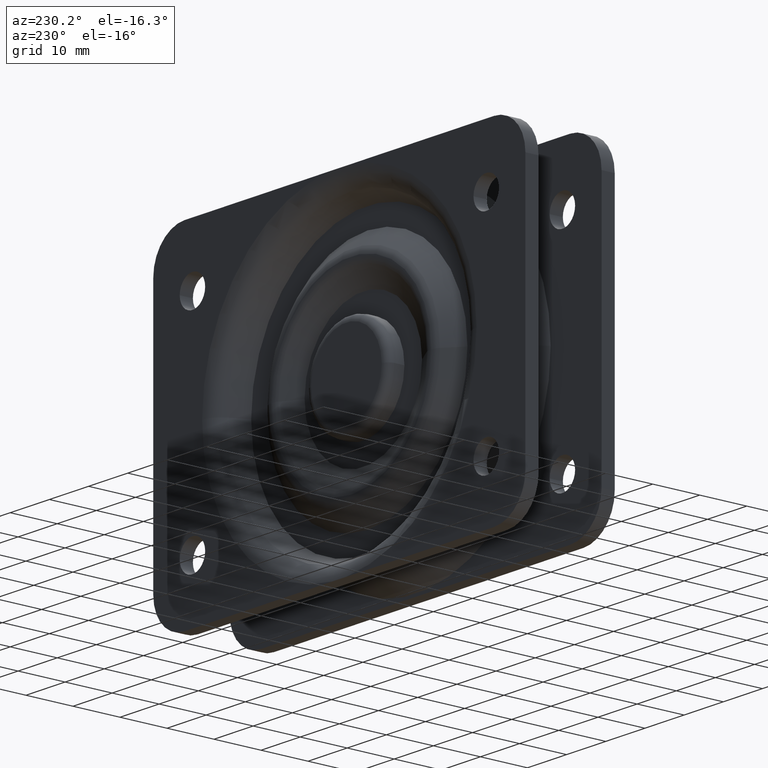
[diagram: clean part render]
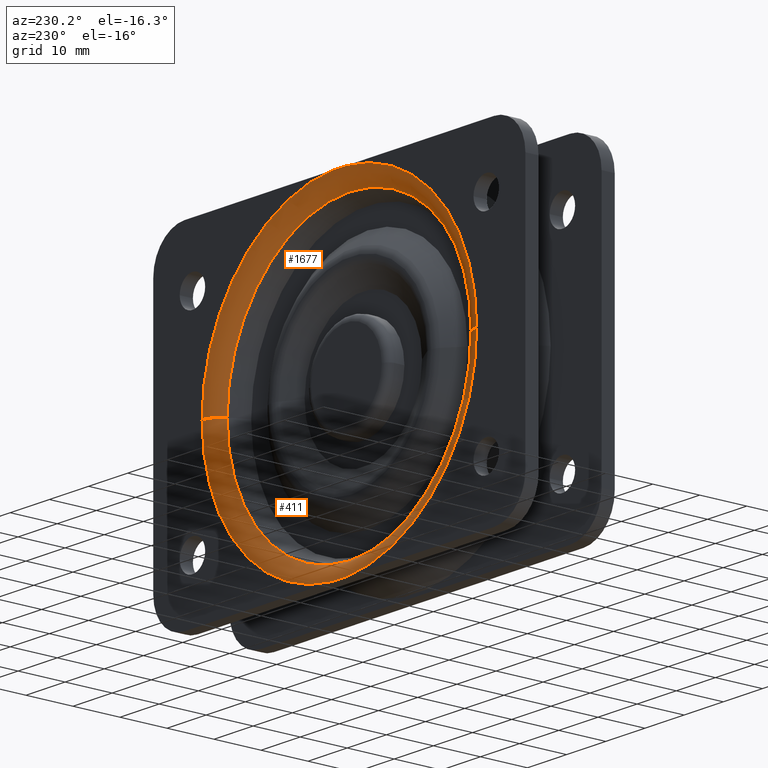
[diagram: same view with one multi-face feature highlighted, each face labeled with its STEP entity id]
A machine part, auxiliary view. The highlighted faces form ONE feature: a constant-radius fillet chain: 2 tangent blend faces with common blend radius 4 mm. The faces share edges in the B-rep.
Their STEP definitions:
[1] entity #411 (Torus):
#39 = CARTESIAN_POINT ( 'NONE',  ( 0.0000000000000000000, -2.309526953037200681, 0.0000000000000000000 ) ) ;
#50 = ORIENTED_EDGE ( 'NONE', *, *, #3909, .F. ) ;
#168 = AXIS2_PLACEMENT_3D ( 'NONE', #249, #897, #1289 ) ;
#249 = CARTESIAN_POINT ( 'NONE',  ( 0.0000000000000000000, 0.0000000000000000000, 0.0000000000000000000 ) ) ;
#292 = DIRECTION ( 'NONE',  ( 0.0000000000000000000, 1.000000000000000000, 0.0000000000000000000 ) ) ;
#311 = B_SPLINE_CURVE_WITH_KNOTS ( 'NONE', 3,
 ( #2778, #1271, #2363, #1683, #3511, #2761, #3542 ),
 .UNSPECIFIED., .F., .F.,
 ( 4, 3, 4 ),
 ( 2.818925683848820622E-18, 0.001839022612733277797, 0.003678045225466555160 ),
 .UNSPECIFIED. ) ;
#315 = CARTESIAN_POINT ( 'NONE',  ( -35.04828104322998428, -4.000000000000000000, 0.0000000000000000000 ) ) ;
#317 = CARTESIAN_POINT ( 'NONE',  ( 35.04828104322998428, -4.000000000000000000, 4.292176519520845193E-15 ) ) ;
#411 = ADVANCED_FACE ( 'NONE', ( #2570 ), #3077, .T. ) ;
#534 = AXIS2_PLACEMENT_3D ( 'NONE', #39, #822, #3450 ) ;
#715 = CARTESIAN_POINT ( 'NONE',  ( 0.0000000000000000000, -4.000000000000000000, 0.0000000000000000000 ) ) ;
#749 = EDGE_CURVE ( 'NONE', #4804, #2352, #4773, .T. ) ;
#782 = AXIS2_PLACEMENT_3D ( 'NONE', #3106, #4215, #1232 ) ;
#822 = DIRECTION ( 'NONE',  ( 0.0000000000000000000, 1.000000000000000000, 0.0000000000000000000 ) ) ;
#897 = DIRECTION ( 'NONE',  ( -0.0000000000000000000, -1.000000000000000000, -0.0000000000000000000 ) ) ;
#994 = ORIENTED_EDGE ( 'NONE', *, *, #2971, .F. ) ;
#1122 = CARTESIAN_POINT ( 'NONE',  ( 1.839022589647689054, 0.0000000000000000000, -34.99999999999999289 ) ) ;
#1128 = DIRECTION ( 'NONE',  ( -1.224646799147353207E-16, 0.0000000000000000000, 1.000000000000000000 ) ) ;
#1163 = CARTESIAN_POINT ( 'NONE',  ( 31.42304989508337698, -2.309526953037200681, 3.848213747346142920E-15 ) ) ;
#1167 = ORIENTED_EDGE ( 'NONE', *, *, #2123, .F. ) ;
#1232 = DIRECTION ( 'NONE',  ( -1.000000000000000000, 0.0000000000000000000, 0.0000000000000000000 ) ) ;
#1271 = CARTESIAN_POINT ( 'NONE',  ( -1.226015052069905353, 3.323120519959017053E-17, -34.99999999999999289 ) ) ;
#1289 = DIRECTION ( 'NONE',  ( -1.000000000000000000, 0.0000000000000000000, 0.0000000000000000000 ) ) ;
#1299 = AXIS2_PLACEMENT_3D ( 'NONE', #315, #3294, #4108 ) ;
#1400 = AXIS2_PLACEMENT_3D ( 'NONE', #715, #292, #3726 ) ;
#1683 = CARTESIAN_POINT ( 'NONE',  ( 1.235990476633475370E-14, -0.0002913930056574784259, -34.99999999999999289 ) ) ;
#1830 = CIRCLE ( 'NONE', #534, 31.42304989508338409 ) ;
#2123 = EDGE_CURVE ( 'NONE', #3506, #3513, #3614, .T. ) ;
#2352 = VERTEX_POINT ( 'NONE', #3537 ) ;
#2363 = CARTESIAN_POINT ( 'NONE',  ( -0.6130075375777468416, -0.0002913930056574784259, -34.99999999999999289 ) ) ;
#2570 = FACE_OUTER_BOUND ( 'NONE', #3920, .T. ) ;
#2665 = CARTESIAN_POINT ( 'NONE',  ( 35.04828104322998428, 4.336808689942017736E-16, 4.292176519520845193E-15 ) ) ;
#2755 = VERTEX_POINT ( 'NONE', #1122 ) ;
#2761 = CARTESIAN_POINT ( 'NONE',  ( 1.226015052069930000, 4.728794064036332378E-16, -34.99999999999999289 ) ) ;
#2778 = CARTESIAN_POINT ( 'NONE',  ( -1.839022589647667072, 0.0000000000000000000, -34.99999999999999289 ) ) ;
#2813 = VERTEX_POINT ( 'NONE', #4802 ) ;
#2946 = ORIENTED_EDGE ( 'NONE', *, *, #3738, .T. ) ;
#2948 = DIRECTION ( 'NONE',  ( 1.000000000000000000, 0.0000000000000000000, 1.224646799147353454E-16 ) ) ;
#2971 = EDGE_CURVE ( 'NONE', #2755, #3506, #4858, .T. ) ;
#3058 = CIRCLE ( 'NONE', #1299, 3.999999999999996447 ) ;
#3077 = TOROIDAL_SURFACE ( 'NONE', #1400, 35.04828104322997717, 4.000000000000000000 ) ;
#3106 = CARTESIAN_POINT ( 'NONE',  ( 0.0000000000000000000, 0.0000000000000000000, 0.0000000000000000000 ) ) ;
#3291 = AXIS2_PLACEMENT_3D ( 'NONE', #317, #1128, #2948 ) ;
#3294 = DIRECTION ( 'NONE',  ( 0.0000000000000000000, 0.0000000000000000000, -1.000000000000000000 ) ) ;
#3333 = ORIENTED_EDGE ( 'NONE', *, *, #749, .F. ) ;
#3397 = ORIENTED_EDGE ( 'NONE', *, *, #4053, .F. ) ;
#3450 = DIRECTION ( 'NONE',  ( -1.000000000000000000, 0.0000000000000000000, 0.0000000000000000000 ) ) ;
#3506 = VERTEX_POINT ( 'NONE', #2665 ) ;
#3511 = CARTESIAN_POINT ( 'NONE',  ( 0.6130075375777714886, -0.0002913930056574784259, -34.99999999999999289 ) ) ;
#3513 = VERTEX_POINT ( 'NONE', #1163 ) ;
#3537 = CARTESIAN_POINT ( 'NONE',  ( -1.839022589647667072, 0.0000000000000000000, -34.99999999999999289 ) ) ;
#3542 = CARTESIAN_POINT ( 'NONE',  ( 1.839022589647689054, 0.0000000000000000000, -34.99999999999999289 ) ) ;
#3614 = CIRCLE ( 'NONE', #3291, 3.999999999999996447 ) ;
#3726 = DIRECTION ( 'NONE',  ( -1.000000000000000000, 0.0000000000000000000, 0.0000000000000000000 ) ) ;
#3738 = EDGE_CURVE ( 'NONE', #4804, #2813, #3058, .T. ) ;
#3909 = EDGE_CURVE ( 'NONE', #3513, #2813, #1830, .T. ) ;
#3920 = EDGE_LOOP ( 'NONE', ( #1167, #994, #3397, #3333, #2946, #50 ) ) ;
#4053 = EDGE_CURVE ( 'NONE', #2352, #2755, #311, .T. ) ;
#4108 = DIRECTION ( 'NONE',  ( -1.000000000000000000, 0.0000000000000000000, 0.0000000000000000000 ) ) ;
#4215 = DIRECTION ( 'NONE',  ( -0.0000000000000000000, -1.000000000000000000, -0.0000000000000000000 ) ) ;
#4537 = CARTESIAN_POINT ( 'NONE',  ( -35.04828104322998428, 4.336808689942017736E-16, 0.0000000000000000000 ) ) ;
#4773 = CIRCLE ( 'NONE', #168, 35.04828104322998428 ) ;
#4802 = CARTESIAN_POINT ( 'NONE',  ( -31.42304989508337698, -2.309526953037200681, 0.0000000000000000000 ) ) ;
#4804 = VERTEX_POINT ( 'NONE', #4537 ) ;
#4858 = CIRCLE ( 'NONE', #782, 35.04828104322998428 ) ;
[2] entity #1677 (Torus):
#43 = CARTESIAN_POINT ( 'NONE',  ( 0.6130075375777714886, -0.0002913930056574784259, 34.99999999999999289 ) ) ;
#112 = AXIS2_PLACEMENT_3D ( 'NONE', #4442, #4116, #335 ) ;
#193 = CARTESIAN_POINT ( 'NONE',  ( 1.839022589647687944, 0.0000000000000000000, 34.99999999999999289 ) ) ;
#315 = CARTESIAN_POINT ( 'NONE',  ( -35.04828104322998428, -4.000000000000000000, 0.0000000000000000000 ) ) ;
#317 = CARTESIAN_POINT ( 'NONE',  ( 35.04828104322998428, -4.000000000000000000, 4.292176519520845193E-15 ) ) ;
#335 = DIRECTION ( 'NONE',  ( -1.000000000000000000, 0.0000000000000000000, 0.0000000000000000000 ) ) ;
#587 = CIRCLE ( 'NONE', #878, 35.04828104322998428 ) ;
#594 = DIRECTION ( 'NONE',  ( 0.0000000000000000000, 1.000000000000000000, 0.0000000000000000000 ) ) ;
#681 = EDGE_CURVE ( 'NONE', #3044, #4804, #3075, .T. ) ;
#694 = ORIENTED_EDGE ( 'NONE', *, *, #4576, .F. ) ;
#809 = CARTESIAN_POINT ( 'NONE',  ( 1.839022589647687944, 0.0000000000000000000, 34.99999999999999289 ) ) ;
#825 = DIRECTION ( 'NONE',  ( -0.0000000000000000000, -1.000000000000000000, -0.0000000000000000000 ) ) ;
#826 = CARTESIAN_POINT ( 'NONE',  ( 1.235990476633475370E-14, -0.0002913930056574784259, 34.99999999999999289 ) ) ;
#878 = AXIS2_PLACEMENT_3D ( 'NONE', #4669, #3144, #3862 ) ;
#1004 = DIRECTION ( 'NONE',  ( -1.000000000000000000, 0.0000000000000000000, 0.0000000000000000000 ) ) ;
#1128 = DIRECTION ( 'NONE',  ( -1.224646799147353207E-16, 0.0000000000000000000, 1.000000000000000000 ) ) ;
#1163 = CARTESIAN_POINT ( 'NONE',  ( 31.42304989508337698, -2.309526953037200681, 3.848213747346142920E-15 ) ) ;
#1299 = AXIS2_PLACEMENT_3D ( 'NONE', #315, #3294, #4108 ) ;
#1524 = ORIENTED_EDGE ( 'NONE', *, *, #2123, .T. ) ;
#1567 = CARTESIAN_POINT ( 'NONE',  ( -1.226015052069905353, 4.395423220856374137E-16, 34.99999999999999289 ) ) ;
#1632 = AXIS2_PLACEMENT_3D ( 'NONE', #3073, #825, #3453 ) ;
#1660 = CARTESIAN_POINT ( 'NONE',  ( -1.839022589647667072, 0.0000000000000000000, 34.99999999999999289 ) ) ;
#1677 = ADVANCED_FACE ( 'NONE', ( #4261 ), #4092, .T. ) ;
#1765 = EDGE_LOOP ( 'NONE', ( #2239, #1524, #694, #3451, #2258, #1920 ) ) ;
#1920 = ORIENTED_EDGE ( 'NONE', *, *, #2930, .F. ) ;
#1976 = VERTEX_POINT ( 'NONE', #193 ) ;
#2123 = EDGE_CURVE ( 'NONE', #3506, #3513, #3614, .T. ) ;
#2228 = B_SPLINE_CURVE_WITH_KNOTS ( 'NONE', 3,
 ( #809, #3025, #43, #826, #4173, #1567, #2286 ),
 .UNSPECIFIED., .F., .F.,
 ( 4, 3, 4 ),
 ( 1.084202186095700254E-18, 0.001839022612733277580, 0.003678045225466557763 ),
 .UNSPECIFIED. ) ;
#2239 = ORIENTED_EDGE ( 'NONE', *, *, #3730, .F. ) ;
#2258 = ORIENTED_EDGE ( 'NONE', *, *, #681, .F. ) ;
#2286 = CARTESIAN_POINT ( 'NONE',  ( -1.839022589647667072, 0.0000000000000000000, 34.99999999999999289 ) ) ;
#2665 = CARTESIAN_POINT ( 'NONE',  ( 35.04828104322998428, 4.336808689942017736E-16, 4.292176519520845193E-15 ) ) ;
#2813 = VERTEX_POINT ( 'NONE', #4802 ) ;
#2930 = EDGE_CURVE ( 'NONE', #1976, #3044, #2228, .T. ) ;
#2948 = DIRECTION ( 'NONE',  ( 1.000000000000000000, 0.0000000000000000000, 1.224646799147353454E-16 ) ) ;
#3025 = CARTESIAN_POINT ( 'NONE',  ( 1.226015052069930000, 6.646241039917921940E-17, 34.99999999999999289 ) ) ;
#3044 = VERTEX_POINT ( 'NONE', #1660 ) ;
#3058 = CIRCLE ( 'NONE', #1299, 3.999999999999996447 ) ;
#3073 = CARTESIAN_POINT ( 'NONE',  ( 0.0000000000000000000, 0.0000000000000000000, 0.0000000000000000000 ) ) ;
#3075 = CIRCLE ( 'NONE', #1632, 35.04828104322998428 ) ;
#3144 = DIRECTION ( 'NONE',  ( -0.0000000000000000000, -1.000000000000000000, -0.0000000000000000000 ) ) ;
#3253 = CARTESIAN_POINT ( 'NONE',  ( 0.0000000000000000000, -2.309526953037200681, 0.0000000000000000000 ) ) ;
#3291 = AXIS2_PLACEMENT_3D ( 'NONE', #317, #1128, #2948 ) ;
#3294 = DIRECTION ( 'NONE',  ( 0.0000000000000000000, 0.0000000000000000000, -1.000000000000000000 ) ) ;
#3451 = ORIENTED_EDGE ( 'NONE', *, *, #3738, .F. ) ;
#3453 = DIRECTION ( 'NONE',  ( -1.000000000000000000, 0.0000000000000000000, 0.0000000000000000000 ) ) ;
#3506 = VERTEX_POINT ( 'NONE', #2665 ) ;
#3513 = VERTEX_POINT ( 'NONE', #1163 ) ;
#3614 = CIRCLE ( 'NONE', #3291, 3.999999999999996447 ) ;
#3730 = EDGE_CURVE ( 'NONE', #3506, #1976, #587, .T. ) ;
#3738 = EDGE_CURVE ( 'NONE', #4804, #2813, #3058, .T. ) ;
#3862 = DIRECTION ( 'NONE',  ( -1.000000000000000000, 0.0000000000000000000, 0.0000000000000000000 ) ) ;
#4092 = TOROIDAL_SURFACE ( 'NONE', #112, 35.04828104322997717, 4.000000000000000000 ) ;
#4108 = DIRECTION ( 'NONE',  ( -1.000000000000000000, 0.0000000000000000000, 0.0000000000000000000 ) ) ;
#4116 = DIRECTION ( 'NONE',  ( 0.0000000000000000000, 1.000000000000000000, 0.0000000000000000000 ) ) ;
#4173 = CARTESIAN_POINT ( 'NONE',  ( -0.6130075375777468416, -0.0002913930056574784259, 34.99999999999999289 ) ) ;
#4261 = FACE_OUTER_BOUND ( 'NONE', #1765, .T. ) ;
#4442 = CARTESIAN_POINT ( 'NONE',  ( 0.0000000000000000000, -4.000000000000000000, 0.0000000000000000000 ) ) ;
#4537 = CARTESIAN_POINT ( 'NONE',  ( -35.04828104322998428, 4.336808689942017736E-16, 0.0000000000000000000 ) ) ;
#4576 = EDGE_CURVE ( 'NONE', #2813, #3513, #4739, .T. ) ;
#4669 = CARTESIAN_POINT ( 'NONE',  ( 0.0000000000000000000, 0.0000000000000000000, 0.0000000000000000000 ) ) ;
#4739 = CIRCLE ( 'NONE', #4853, 31.42304989508338409 ) ;
#4802 = CARTESIAN_POINT ( 'NONE',  ( -31.42304989508337698, -2.309526953037200681, 0.0000000000000000000 ) ) ;
#4804 = VERTEX_POINT ( 'NONE', #4537 ) ;
#4853 = AXIS2_PLACEMENT_3D ( 'NONE', #3253, #594, #1004 ) ;